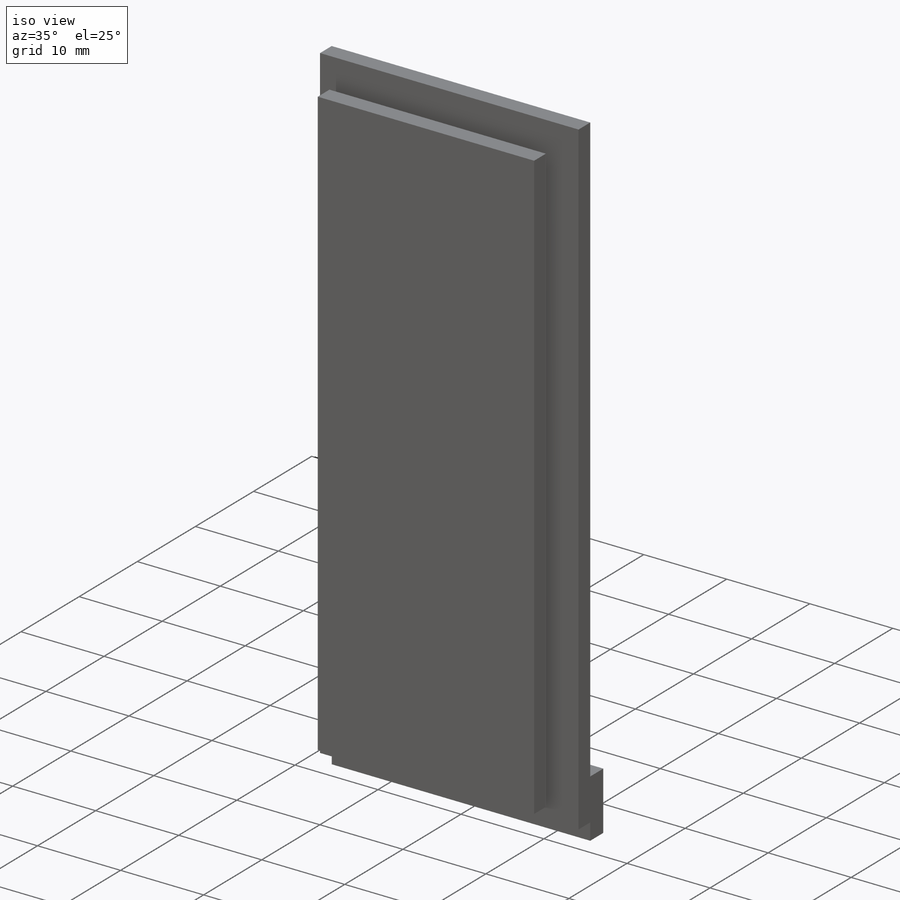
[diagram: iso view]
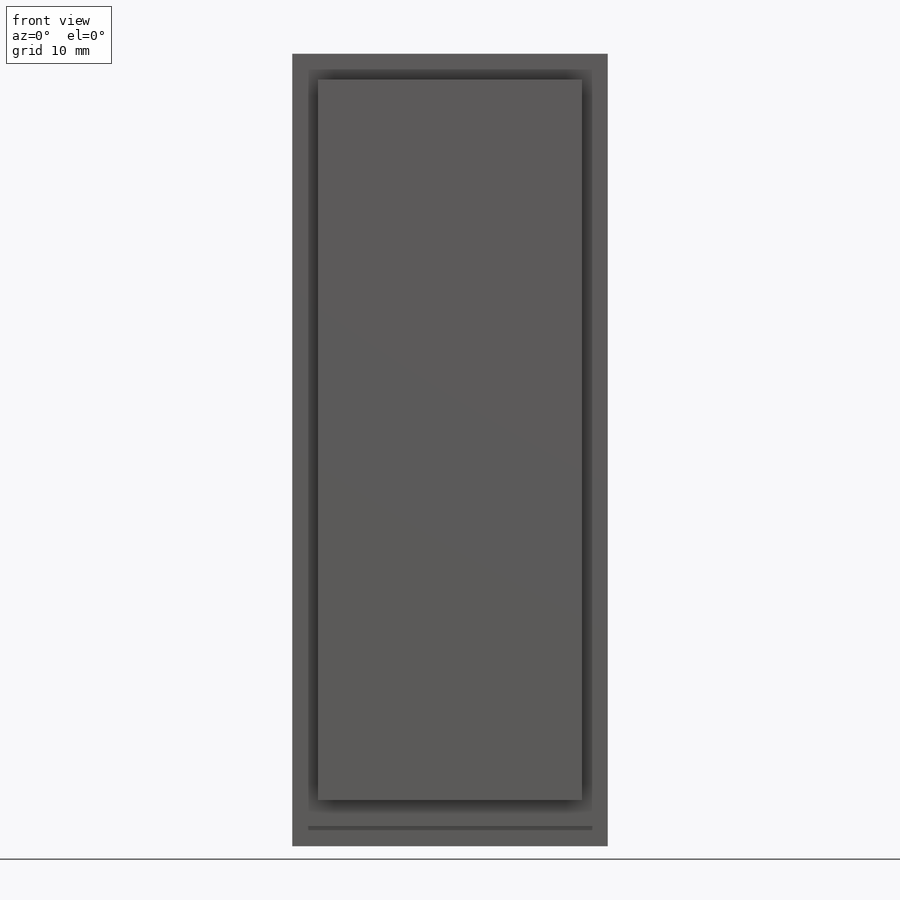
[diagram: front view]
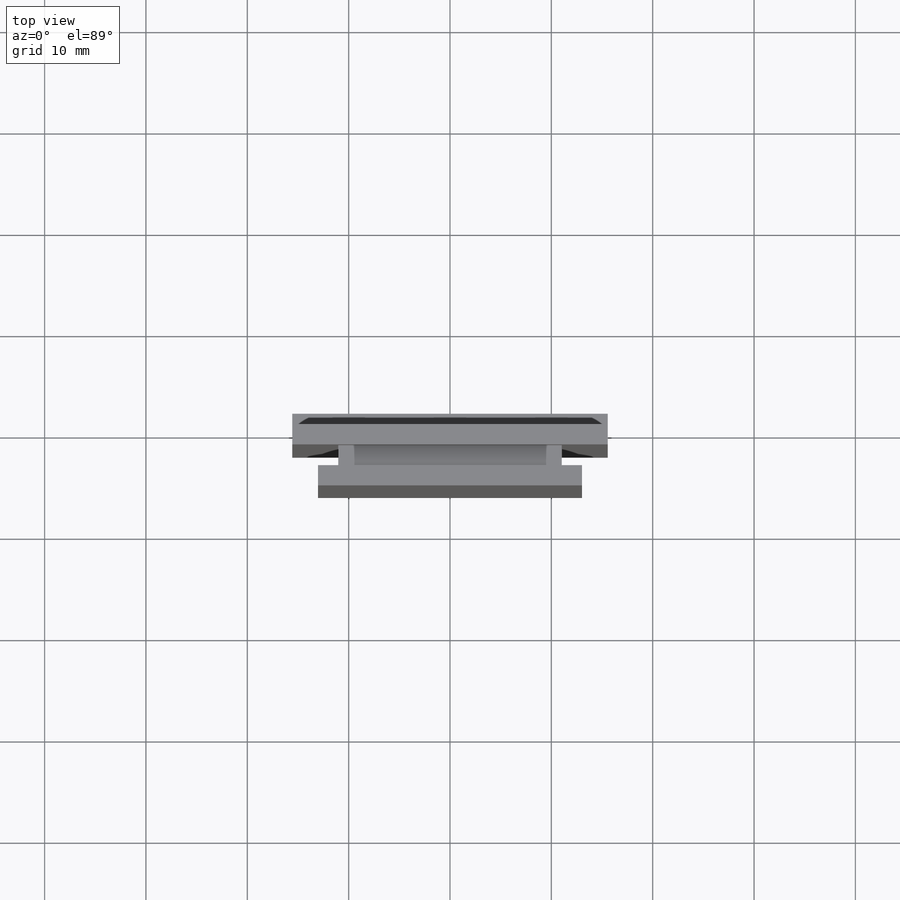
[diagram: top view]
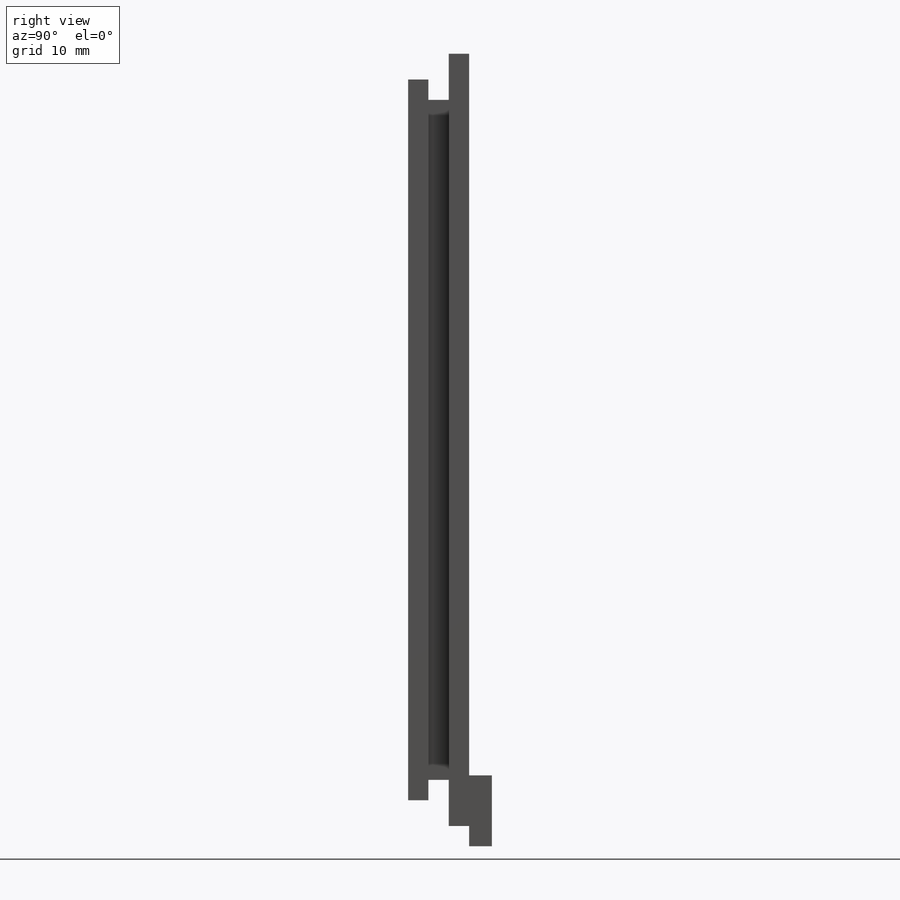
[diagram: right view]
SOLIDWORKS PART (.sldprt)
format: sldprt  version: not decoded by parser v0  size: 228,352 bytes
history: native  units: mm
features: sketch x4, extrude x4, material x1 (+15 scaffold rows collapsed)
feature tree (24):
  scaffold x15  (default folders/planes/origin — collapsed)
  material  "Material <not specified>"
  sketch  "Sketch2"  dims[D1=31.1404mm D2=76.2mm]
  extrude  "Extrude1"  Depth=2.0066mm
  sketch  "Sketch3"  dims[D1=22.0472mm D2=67.1068mm]
  extrude  "Extrude2"  Depth=2.0066mm
  sketch  "Sketch4"  dims[D1=71.12mm D2=26.0604mm]
  extrude  "Extrude3"  Depth=2.0066mm
  sketch  "Sketch5"  dims[D1=5.0mm D2=2.0mm]
  extrude  "Extrude4"  Depth=2.25mm
decode coverage: 8 of 8 modeling features carry decoded parameters
note: suppression state not decoded; provenance and decode notes live in map.json
